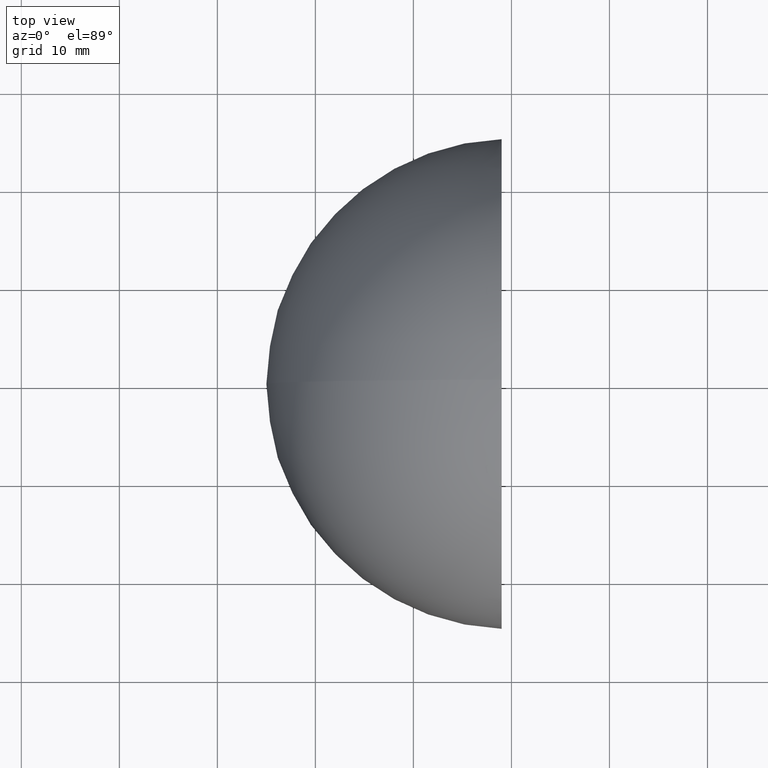
[diagram: clean part render]
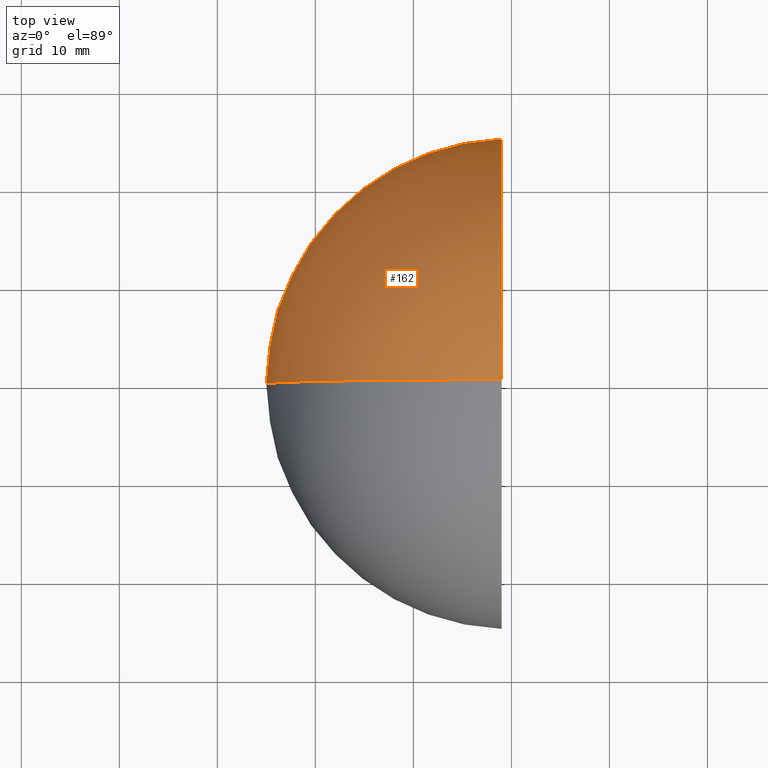
[diagram: same view with one face highlighted and labeled with its STEP entity id]
A machine part, top view. The second image highlights one B-rep face of the part: STEP entity #162.
In plain terms, the highlighted spherical surface has radius 25 mm.
Its self-contained STEP definition (entity closure, byte-faithful):
#10 = CARTESIAN_POINT ( 'NONE',  ( -0.9999999999999956700, 0.0000000000000000000, 0.0000000000000000000 ) ) ;
#17 = ORIENTED_EDGE ( 'NONE', *, *, #127, .T. ) ;
#21 = CARTESIAN_POINT ( 'NONE',  ( 0.0000000000000000000, 0.0000000000000000000, 0.0000000000000000000 ) ) ;
#23 = DIRECTION ( 'NONE',  ( 0.0000000000000000000, -1.224646799147353200E-016, -1.000000000000000000 ) ) ;
#31 = DIRECTION ( 'NONE',  ( 0.0000000000000000000, 0.0000000000000000000, 1.000000000000000000 ) ) ;
#32 = CARTESIAN_POINT ( 'NONE',  ( 0.0000000000000000000, 0.0000000000000000000, 0.0000000000000000000 ) ) ;
#37 = EDGE_CURVE ( 'NONE', #80, #121, #75, .T. ) ;
#40 = VERTEX_POINT ( 'NONE', #95 ) ;
#48 = CARTESIAN_POINT ( 'NONE',  ( -0.9999999999999956700, -3.059166723768090100E-015, -24.97999199359359700 ) ) ;
#55 = CIRCLE ( 'NONE', #146, 25.00000000000000000 ) ;
#57 = CIRCLE ( 'NONE', #128, 24.97999199359359700 ) ;
#58 = EDGE_CURVE ( 'NONE', #121, #40, #57, .T. ) ;
#59 = DIRECTION ( 'NONE',  ( 0.0000000000000000000, -1.000000000000000000, 0.0000000000000000000 ) ) ;
#66 = AXIS2_PLACEMENT_3D ( 'NONE', #21, #83, #23 ) ;
#67 = DIRECTION ( 'NONE',  ( 1.000000000000000000, -0.0000000000000000000, -0.0000000000000000000 ) ) ;
#70 = ORIENTED_EDGE ( 'NONE', *, *, #37, .F. ) ;
#75 = CIRCLE ( 'NONE', #66, 25.00000000000000000 ) ;
#79 = DIRECTION ( 'NONE',  ( 0.0000000000000000000, 1.000000000000000000, 0.0000000000000000000 ) ) ;
#80 = VERTEX_POINT ( 'NONE', #154 ) ;
#81 = CARTESIAN_POINT ( 'NONE',  ( 0.0000000000000000000, 0.0000000000000000000, 0.0000000000000000000 ) ) ;
#83 = DIRECTION ( 'NONE',  ( 0.0000000000000000000, -1.000000000000000000, 1.224646799147353200E-016 ) ) ;
#87 = ORIENTED_EDGE ( 'NONE', *, *, #58, .F. ) ;
#95 = CARTESIAN_POINT ( 'NONE',  ( -0.9999999999999956700, 0.0000000000000000000, 24.97999199359359700 ) ) ;
#98 = DIRECTION ( 'NONE',  ( 0.0000000000000000000, 0.0000000000000000000, 1.000000000000000000 ) ) ;
#121 = VERTEX_POINT ( 'NONE', #48 ) ;
#127 = EDGE_CURVE ( 'NONE', #80, #40, #55, .T. ) ;
#128 = AXIS2_PLACEMENT_3D ( 'NONE', #10, #67, #165 ) ;
#135 = EDGE_LOOP ( 'NONE', ( #70, #17, #87 ) ) ;
#146 = AXIS2_PLACEMENT_3D ( 'NONE', #32, #79, #98 ) ;
#154 = CARTESIAN_POINT ( 'NONE',  ( -25.00000000000000000, 0.0000000000000000000, 1.530808498934191500E-015 ) ) ;
#156 = FACE_OUTER_BOUND ( 'NONE', #135, .T. ) ;
#160 = AXIS2_PLACEMENT_3D ( 'NONE', #81, #59, #31 ) ;
#162 = ADVANCED_FACE ( 'NONE', ( #156 ), #163, .T. ) ;
#163 = SPHERICAL_SURFACE ( 'NONE', #160, 25.00000000000000000 ) ;
#165 = DIRECTION ( 'NONE',  ( 0.0000000000000000000, 0.0000000000000000000, -1.000000000000000000 ) ) ;